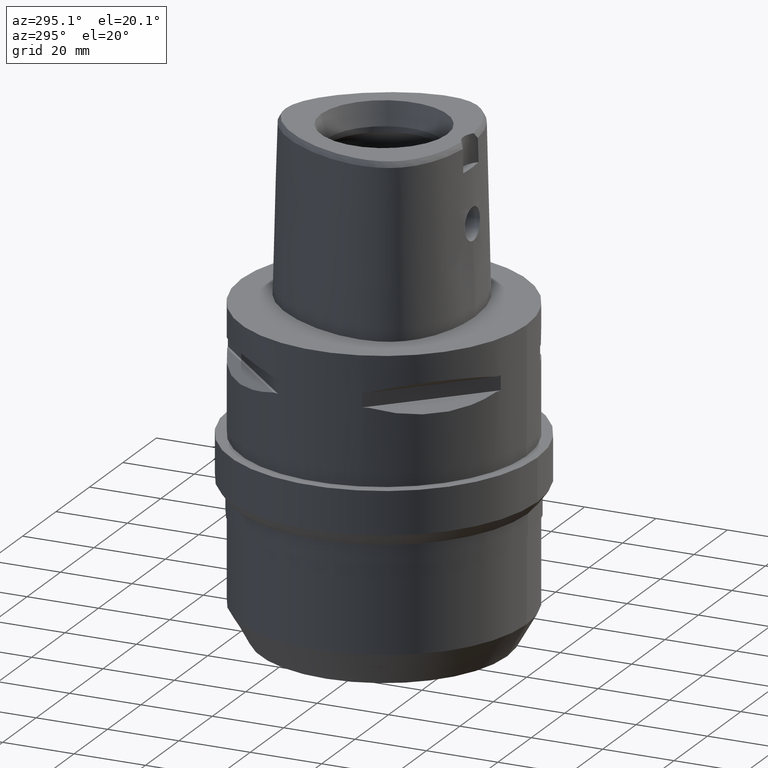
[diagram: clean part render]
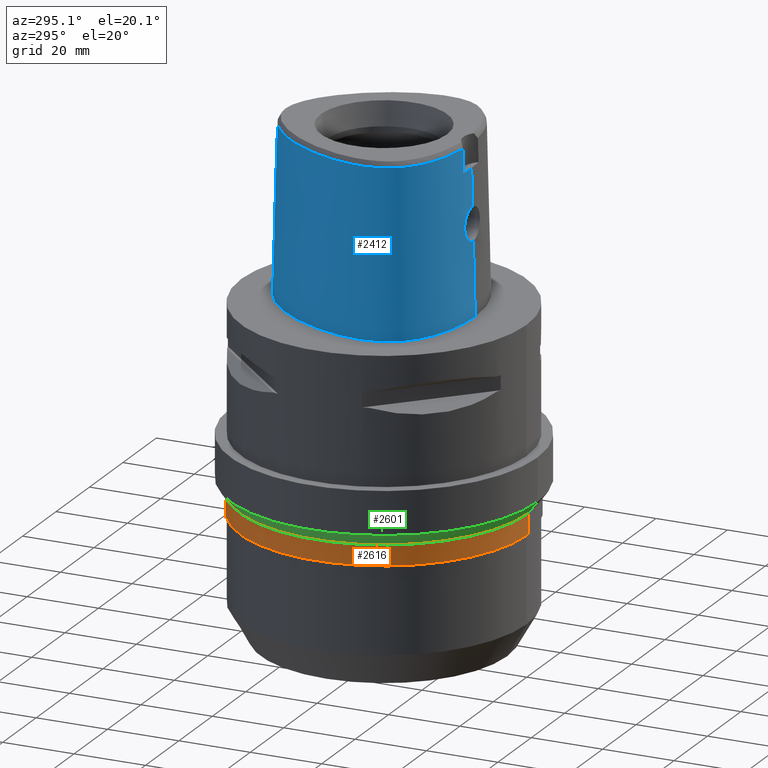
[diagram: same view with three faces highlighted in distinct colors, each labeled with its STEP entity id]
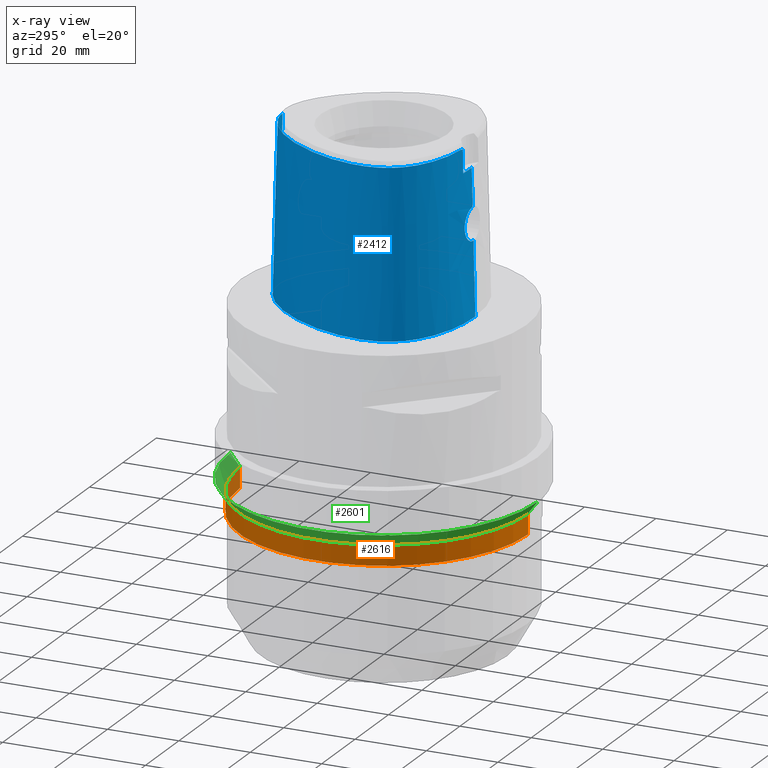
[diagram: x-ray of the same camera — body ghosted, the three highlighted faces saturated]
A machine part, auxiliary view with three faces highlighted in distinct colors.
The next image is the same camera in x-ray (body ghosted, the three faces saturated) — at least one of them is partly hidden behind the body in this view.
Their STEP definitions:

[orange] entity #2616 — the highlighted cylindrical surface (partial cylindrical patch) has radius 40.35 mm, axis along (0, 0, -1).
#594=CARTESIAN_POINT('',(0.E0,0.E0,-5.091666877729E1));
#595=DIRECTION('',(0.E0,0.E0,-1.E0));
#596=DIRECTION('',(0.E0,-1.E0,0.E0));
#597=AXIS2_PLACEMENT_3D('',#594,#595,#596);
#602=DIRECTION('',(0.E0,2.988031265328E-13,-1.E0));
#603=VECTOR('',#602,5.683331222709E0);
#604=CARTESIAN_POINT('',(0.E0,-4.035E1,-5.091666877729E1));
#605=LINE('',#604,#603);
#609=DIRECTION('',(0.E0,-2.988031265328E-13,-1.E0));
#610=VECTOR('',#609,5.683331222709E0);
#611=CARTESIAN_POINT('',(0.E0,4.035E1,-5.091666877729E1));
#612=LINE('',#611,#610);
#624=CARTESIAN_POINT('',(0.E0,0.E0,-5.66E1));
#625=DIRECTION('',(0.E0,0.E0,1.E0));
#626=DIRECTION('',(0.E0,1.E0,0.E0));
#627=AXIS2_PLACEMENT_3D('',#624,#625,#626);
#1600=CARTESIAN_POINT('',(0.E0,4.035E1,-5.091666877729E1));
#1601=VERTEX_POINT('',#1600);
#1602=CARTESIAN_POINT('',(0.E0,-4.035E1,-5.091666877729E1));
#1603=VERTEX_POINT('',#1602);
#1604=CARTESIAN_POINT('',(0.E0,4.035E1,-5.66E1));
#1605=VERTEX_POINT('',#1604);
#1606=CARTESIAN_POINT('',(0.E0,-4.035E1,-5.66E1));
#1607=VERTEX_POINT('',#1606);
#2602=CARTESIAN_POINT('',(0.E0,0.E0,4.62E0));
#2603=DIRECTION('',(0.E0,0.E0,-1.E0));
#2604=DIRECTION('',(0.E0,-1.E0,0.E0));
#2605=AXIS2_PLACEMENT_3D('',#2602,#2603,#2604);
#2606=CYLINDRICAL_SURFACE('',#2605,4.035E1);
#2608=ORIENTED_EDGE('',*,*,#2607,.F.);
#2609=ORIENTED_EDGE('',*,*,#2597,.F.);
#2611=ORIENTED_EDGE('',*,*,#2610,.T.);
#2613=ORIENTED_EDGE('',*,*,#2612,.F.);
#2614=EDGE_LOOP('',(#2608,#2609,#2611,#2613));
#2615=FACE_OUTER_BOUND('',#2614,.F.);
#598=CIRCLE('',#597,4.035E1);
#628=CIRCLE('',#627,4.035E1);
#2597=EDGE_CURVE('',#1603,#1601,#598,.T.);
#2607=EDGE_CURVE('',#1601,#1605,#612,.T.);
#2610=EDGE_CURVE('',#1603,#1607,#605,.T.);
#2612=EDGE_CURVE('',#1605,#1607,#628,.T.);
#2616=ADVANCED_FACE('',(#2615),#2606,.T.);

[blue] entity #2412 — the highlighted face is a freeform B-spline surface patch.
#197=CARTESIAN_POINT('',(-4.472216406693E0,-2.420008985674E1,4.652070903171E1));
#198=CARTESIAN_POINT('',(-5.535696090780E0,-2.409828737959E1,4.652067796942E1));
#199=CARTESIAN_POINT('',(-7.537492047378E0,-2.383054342748E1,4.652073780313E1));
#200=CARTESIAN_POINT('',(-1.009707893714E1,-2.331301964075E1,4.652070623966E1));
#201=CARTESIAN_POINT('',(-1.234026739645E1,-2.271045901302E1,4.652071932215E1));
#202=CARTESIAN_POINT('',(-1.435720702003E1,-2.202884162870E1,4.652071942163E1));
#203=CARTESIAN_POINT('',(-1.620109083545E1,-2.126639615954E1,4.652071666872E1));
#204=CARTESIAN_POINT('',(-1.789203321677E1,-2.042344793334E1,4.652071968984E1));
#205=CARTESIAN_POINT('',(-1.946547946128E1,-1.948257113983E1,4.652071724556E1));
#206=CARTESIAN_POINT('',(-2.091327144915E1,-1.843690128563E1,4.652071800333E1));
#207=CARTESIAN_POINT('',(-2.215514148304E1,-1.734782509168E1,4.652071777248E1));
#208=CARTESIAN_POINT('',(-2.319440521491E1,-1.624070531706E1,4.652072116018E1));
#209=CARTESIAN_POINT('',(-2.405233087688E1,-1.512284511738E1,4.652072282655E1));
#210=CARTESIAN_POINT('',(-2.475842404930E1,-1.398158538396E1,4.652071983229E1));
#211=CARTESIAN_POINT('',(-2.535341998813E1,-1.275625237356E1,4.652071175064E1));
#212=CARTESIAN_POINT('',(-2.585426339347E1,-1.139178155984E1,4.652072128293E1));
#213=CARTESIAN_POINT('',(-2.624626984412E1,-9.881841657330E0,4.652071785722E1));
#214=CARTESIAN_POINT('',(-2.651728077096E1,-8.174722834406E0,4.652072276603E1));
#215=CARTESIAN_POINT('',(-2.663450176932E1,-6.366223919380E0,4.652071351701E1));
#216=CARTESIAN_POINT('',(-2.660311770191E1,-4.520569375661E0,4.652072651250E1));
#217=CARTESIAN_POINT('',(-2.642892789065E1,-2.600901610572E0,4.652071590850E1));
#218=CARTESIAN_POINT('',(-2.610575130194E1,-5.851050941881E-1,
4.652071510782E1));
#219=CARTESIAN_POINT('',(-2.561779005425E1,1.560335947821E0,4.652072159103E1));
#220=CARTESIAN_POINT('',(-2.492873254188E1,3.895950727393E0,4.652070170358E1));
#221=CARTESIAN_POINT('',(-2.397785720825E1,6.494505747404E0,4.652072642433E1));
#222=CARTESIAN_POINT('',(-2.266788588541E1,9.435046772976E0,4.652069379531E1));
#223=CARTESIAN_POINT('',(-2.098616279133E1,1.256215451377E1,4.652072580218E1));
#224=CARTESIAN_POINT('',(-1.909271964583E1,1.551518943518E1,4.652068228930E1));
#225=CARTESIAN_POINT('',(-1.722915730816E1,1.800204295943E1,4.652072754715E1));
#226=CARTESIAN_POINT('',(-1.546270675943E1,2.005609305260E1,4.652070864834E1));
#227=CARTESIAN_POINT('',(-1.379537457490E1,2.175940482803E1,4.652072123371E1));
#228=CARTESIAN_POINT('',(-1.221132965694E1,2.318695541186E1,4.652072843725E1));
#229=CARTESIAN_POINT('',(-1.063153800587E1,2.443569604426E1,4.652071379716E1));
#230=CARTESIAN_POINT('',(-9.046806200712E0,2.551771001280E1,4.652072507957E1));
#231=CARTESIAN_POINT('',(-7.444512309172E0,2.644192410092E1,4.652071440757E1));
#232=CARTESIAN_POINT('',(-5.831403669631E0,2.719974727431E1,4.652072017212E1));
#233=CARTESIAN_POINT('',(-4.247522765596E0,2.777151884815E1,4.652071719450E1));
#234=CARTESIAN_POINT('',(-2.757388373659E0,2.815150949995E1,4.652072099701E1));
#235=CARTESIAN_POINT('',(-1.341194252993E0,2.836680419075E1,4.652067367601E1));
#236=CARTESIAN_POINT('',(-4.475109843232E-1,2.841206021535E1,4.652071719450E1));
#237=CARTESIAN_POINT('',(-1.223003593101E-11,2.841206021535E1,
4.652071719451E1));
#249=CARTESIAN_POINT('',(-4.472216406693E0,-2.420008985674E1,4.652070903171E1));
#250=CARTESIAN_POINT('',(-4.487210721186E0,-2.421685468864E1,4.579601479726E1));
#251=CARTESIAN_POINT('',(-4.516393871198E0,-2.424985511122E1,4.434671166025E1));
#252=CARTESIAN_POINT('',(-4.559960929945E0,-2.430022581201E1,4.217314625867E1));
#253=CARTESIAN_POINT('',(-4.588866880071E0,-2.433440429495E1,4.072435065553E1));
#254=CARTESIAN_POINT('',(-4.602926399294E0,-2.435121850033E1,4.E1));
#259=DIRECTION('',(1.388127436484E-9,-2.499239851702E-2,-9.996876412242E-1));
#260=VECTOR('',#259,1.045326522127E1);
#261=CARTESIAN_POINT('',(-1.451045074373E-8,-2.457504746727E1,
4.000000005214E1));
#262=LINE('',#261,#260);
#266=CARTESIAN_POINT('',(1.351075727146E-14,-2.483629963748E1,2.955E1));
#267=CARTESIAN_POINT('',(-3.966835984646E-1,-2.483629963748E1,2.955E1));
#268=CARTESIAN_POINT('',(-1.190418809773E0,-2.482887723659E1,2.944561742728E1));
#269=CARTESIAN_POINT('',(-2.300741017991E0,-2.479906243005E1,2.898605904871E1));
#270=CARTESIAN_POINT('',(-3.255789090205E0,-2.476057038817E1,2.825311794410E1));
#271=CARTESIAN_POINT('',(-3.987636326582E0,-2.472742176594E1,2.729796279280E1));
#272=CARTESIAN_POINT('',(-4.446358689829E0,-2.471345406062E1,2.618734946089E1));
#273=CARTESIAN_POINT('',(-4.602009607481E0,-2.472805014992E1,2.499856857259E1));
#274=CARTESIAN_POINT('',(-4.445601745922E0,-2.477322141726E1,2.381050642308E1));
#275=CARTESIAN_POINT('',(-3.987821795884E0,-2.484269847339E1,2.270284549258E1));
#276=CARTESIAN_POINT('',(-3.257169514981E0,-2.492348668177E1,2.174816226309E1));
#277=CARTESIAN_POINT('',(-2.300561363557E0,-2.499862191626E1,2.101354524447E1));
#278=CARTESIAN_POINT('',(-1.188130274278E0,-2.505127109848E1,2.055374615128E1));
#279=CARTESIAN_POINT('',(-3.956083647812E-1,-2.506378435149E1,2.045E1));
#280=CARTESIAN_POINT('',(-2.119246273958E-12,-2.506378435149E1,2.045E1));
#285=DIRECTION('',(-7.297938437820E-13,-2.499051295404E-2,-9.996876883619E-1));
#286=VECTOR('',#285,2.045638876829E1);
#287=CARTESIAN_POINT('',(-2.119246273958E-12,-2.506378435149E1,2.045E1));
#288=LINE('',#287,#286);
#352=CARTESIAN_POINT('',(4.094835185930E-11,2.957499999999E1,
1.055081947735E-13));
#353=CARTESIAN_POINT('',(-4.664564684384E-1,2.957499999999E1,
1.055081947735E-13));
#354=CARTESIAN_POINT('',(-1.418271028566E0,2.952848507996E1,
-4.896652360467E-14));
#355=CARTESIAN_POINT('',(-2.896217051050E0,2.930995325337E1,
1.312054045603E-14));
#356=CARTESIAN_POINT('',(-4.443884931567E0,2.892708811583E1,0.E0));
#357=CARTESIAN_POINT('',(-6.069813882001E0,2.835898482873E1,0.E0));
#358=CARTESIAN_POINT('',(-7.780373194796E0,2.758111955665E1,0.E0));
#359=CARTESIAN_POINT('',(-9.585481608237E0,2.656078305260E1,0.E0));
#360=CARTESIAN_POINT('',(-1.148361208187E1,2.526433347887E1,0.E0));
#361=CARTESIAN_POINT('',(-1.346633178516E1,2.365774650746E1,0.E0));
#362=CARTESIAN_POINT('',(-1.551326053238E1,2.171184069412E1,0.E0));
#363=CARTESIAN_POINT('',(-1.758199557510E1,1.941857400264E1,0.E0));
#364=CARTESIAN_POINT('',(-1.961693493878E1,1.679246973417E1,0.E0));
#365=CARTESIAN_POINT('',(-2.154357946018E1,1.388796551507E1,0.E0));
#366=CARTESIAN_POINT('',(-2.327631850598E1,1.081304331557E1,0.E0));
#367=CARTESIAN_POINT('',(-2.474800267217E1,7.689226874884E0,0.E0));
#368=CARTESIAN_POINT('',(-2.591507505114E1,4.647666988424E0,0.E0));
#369=CARTESIAN_POINT('',(-2.678019667027E1,1.761498275329E0,0.E0));
#370=CARTESIAN_POINT('',(-2.736252648146E1,-9.199920726734E-1,0.E0));
#371=CARTESIAN_POINT('',(-2.769345335620E1,-3.374240948671E0,0.E0));
#372=CARTESIAN_POINT('',(-2.780796994262E1,-5.603010637275E0,0.E0));
#373=CARTESIAN_POINT('',(-2.773915802349E1,-7.615039053868E0,0.E0));
#374=CARTESIAN_POINT('',(-2.751385896507E1,-9.436890439889E0,0.E0));
#375=CARTESIAN_POINT('',(-2.715772832384E1,-1.107142889865E1,0.E0));
#376=CARTESIAN_POINT('',(-2.668453526956E1,-1.255805913812E1,0.E0));
#377=CARTESIAN_POINT('',(-2.610182852062E1,-1.391937325701E1,0.E0));
#378=CARTESIAN_POINT('',(-2.539957500954E1,-1.519188202084E1,0.E0));
#379=CARTESIAN_POINT('',(-2.455886506967E1,-1.640320524147E1,0.E0));
#380=CARTESIAN_POINT('',(-2.356927570199E1,-1.756804304800E1,0.E0));
#381=CARTESIAN_POINT('',(-2.239536366538E1,-1.870975851906E1,0.E0));
#382=CARTESIAN_POINT('',(-2.101862773116E1,-1.982083592174E1,0.E0));
#383=CARTESIAN_POINT('',(-1.940143759145E1,-2.090242833450E1,0.E0));
#384=CARTESIAN_POINT('',(-1.751815854250E1,-2.193790857256E1,0.E0));
#385=CARTESIAN_POINT('',(-1.533575286605E1,-2.290979051184E1,0.E0));
#386=CARTESIAN_POINT('',(-1.283637987130E1,-2.378832450704E1,0.E0));
#387=CARTESIAN_POINT('',(-1.001156390994E1,-2.453906053571E1,0.E0));
#388=CARTESIAN_POINT('',(-6.881039442222E0,-2.512047618744E1,
1.390749675837E-14));
#389=CARTESIAN_POINT('',(-3.517978097918E0,-2.548906313244E1,
-5.190348450835E-14));
#390=CARTESIAN_POINT('',(-1.190740944839E0,-2.5575E1,1.118364660139E-13));
#391=CARTESIAN_POINT('',(-1.704819286307E-11,-2.5575E1,1.118364660139E-13));
#1023=DIRECTION('',(1.142754943752E-12,2.499051293969E-2,-9.996876883622E-1));
#1024=VECTOR('',#1023,4.653525069487E1);
#1025=CARTESIAN_POINT('',(-1.223003593101E-11,2.841206021535E1,
4.652071719451E1));
#1026=LINE('',#1025,#1024);
#1040=CARTESIAN_POINT('',(-1.451045074373E-8,-2.457504746727E1,
4.000000005214E1));
#1041=CARTESIAN_POINT('',(-5.124223382063E-1,-2.457504746706E1,
4.000000005214E1));
#1042=CARTESIAN_POINT('',(-1.536621703185E0,-2.455890147822E1,
3.999999997567E1));
#1043=CARTESIAN_POINT('',(-3.071957833090E0,-2.448406989332E1,
4.000000000695E1));
#1044=CARTESIAN_POINT('',(-4.092927957720E0,-2.440134255033E1,4.E1));
#1045=CARTESIAN_POINT('',(-4.602926399294E0,-2.435121850033E1,4.E1));
#1521=CARTESIAN_POINT('',(-4.602965878456E0,-2.435127227233E1,4.E1));
#1522=VERTEX_POINT('',#1521);
#1523=VERTEX_POINT('',#249);
#1524=CARTESIAN_POINT('',(-1.223003593101E-11,2.841206021535E1,
4.652071719451E1));
#1525=VERTEX_POINT('',#1524);
#1526=VERTEX_POINT('',#352);
#1527=VERTEX_POINT('',#391);
#1528=VERTEX_POINT('',#1040);
#1529=CARTESIAN_POINT('',(1.351075727145E-14,-2.483629963748E1,2.955E1));
#1530=VERTEX_POINT('',#1529);
#1531=VERTEX_POINT('',#280);
#2287=CARTESIAN_POINT('',(9.115101686112E-1,2.956851176048E1,
-9.304144967421E-1));
#2288=CARTESIAN_POINT('',(8.850788438847E-1,2.916624660665E1,1.519677011345E1));
#2289=CARTESIAN_POINT('',(8.586475191582E-1,2.876398145282E1,3.132395472365E1));
#2290=CARTESIAN_POINT('',(8.322161944317E-1,2.836171629899E1,4.745113933385E1));
#2291=CARTESIAN_POINT('',(6.077626423974E-1,2.958843421417E1,
-9.304144967421E-1));
#2292=CARTESIAN_POINT('',(5.902542483668E-1,2.918556699599E1,1.519677011345E1));
#2293=CARTESIAN_POINT('',(5.727458543362E-1,2.878269977782E1,3.132395472365E1));
#2294=CARTESIAN_POINT('',(5.552374603056E-1,2.837983255964E1,4.745113933385E1));
#2295=CARTESIAN_POINT('',(-7.475778414574E-1,2.963225228778E1,
-9.304144967421E-1));
#2296=CARTESIAN_POINT('',(-7.257524940536E-1,2.922811258826E1,
1.519677011345E1));
#2297=CARTESIAN_POINT('',(-7.039271466497E-1,2.882397288874E1,
3.132395472365E1));
#2298=CARTESIAN_POINT('',(-6.821017992458E-1,2.841983318922E1,
4.745113933385E1));
#2299=CARTESIAN_POINT('',(-3.154109046613E0,2.936302093424E1,
-9.304144967421E-1));
#2300=CARTESIAN_POINT('',(-3.067023396852E0,2.896669974079E1,1.519677011345E1));
#2301=CARTESIAN_POINT('',(-2.979937747091E0,2.857037854734E1,3.132395472365E1));
#2302=CARTESIAN_POINT('',(-2.892852097330E0,2.817405735390E1,4.745113933385E1));
#2303=CARTESIAN_POINT('',(-6.271543170706E0,2.837237220568E1,
-9.304144967421E-1));
#2304=CARTESIAN_POINT('',(-6.114741921530E0,2.799897532805E1,1.519677011345E1));
#2305=CARTESIAN_POINT('',(-5.957940672353E0,2.762557845043E1,3.132395472365E1));
#2306=CARTESIAN_POINT('',(-5.801139423176E0,2.725218157280E1,4.745113933385E1));
#2307=CARTESIAN_POINT('',(-9.316733117528E0,2.681182150682E1,
-9.304144967421E-1));
#2308=CARTESIAN_POINT('',(-9.105791461680E0,2.646675913855E1,1.519677011345E1));
#2309=CARTESIAN_POINT('',(-8.894849805832E0,2.612169677027E1,3.132395472365E1));
#2310=CARTESIAN_POINT('',(-8.683908149984E0,2.577663440199E1,4.745113933385E1));
#2311=CARTESIAN_POINT('',(-1.323332856326E1,2.406149249942E1,
-9.304144967421E-1));
#2312=CARTESIAN_POINT('',(-1.296695409471E1,2.375598709287E1,1.519677011345E1));
#2313=CARTESIAN_POINT('',(-1.270057962616E1,2.345048168632E1,3.132395472365E1));
#2314=CARTESIAN_POINT('',(-1.243420515760E1,2.314497627977E1,4.745113933385E1));
#2315=CARTESIAN_POINT('',(-1.777103258667E1,1.953703864479E1,
-9.304144967421E-1));
#2316=CARTESIAN_POINT('',(-1.745811262062E1,1.927961880175E1,1.519677011345E1));
#2317=CARTESIAN_POINT('',(-1.714519265457E1,1.902219895872E1,3.132395472365E1));
#2318=CARTESIAN_POINT('',(-1.683227268852E1,1.876477911568E1,4.745113933385E1));
#2319=CARTESIAN_POINT('',(-2.235908247811E1,1.290902243076E1,
-9.304144967421E-1));
#2320=CARTESIAN_POINT('',(-2.200846692396E1,1.270659196427E1,1.519677011345E1));
#2321=CARTESIAN_POINT('',(-2.165785136981E1,1.250416149778E1,3.132395472365E1));
#2322=CARTESIAN_POINT('',(-2.130723581565E1,1.230173103128E1,4.745113933385E1));
#2323=CARTESIAN_POINT('',(-2.523075706229E1,6.836210430756E0,
-9.304144967421E-1));
#2324=CARTESIAN_POINT('',(-2.485610464695E1,6.683875464319E0,1.519677011345E1));
#2325=CARTESIAN_POINT('',(-2.448145223162E1,6.531540497882E0,3.132395472365E1));
#2326=CARTESIAN_POINT('',(-2.410679981629E1,6.379205531445E0,4.745113933385E1));
#2327=CARTESIAN_POINT('',(-2.679474625822E1,1.906447387461E0,
-9.304144967421E-1));
#2328=CARTESIAN_POINT('',(-2.640443225606E1,1.802817671474E0,1.519677011345E1));
#2329=CARTESIAN_POINT('',(-2.601411825390E1,1.699187955488E0,3.132395472365E1));
#2330=CARTESIAN_POINT('',(-2.562380425174E1,1.595558239502E0,4.745113933385E1));
#2331=CARTESIAN_POINT('',(-2.756041892290E1,-1.762105663687E0,
-9.304144967421E-1));
#2332=CARTESIAN_POINT('',(-2.716099298171E1,-1.823107493114E0,
1.519677011345E1));
#2333=CARTESIAN_POINT('',(-2.676156704052E1,-1.884109322542E0,
3.132395472365E1));
#2334=CARTESIAN_POINT('',(-2.636214109934E1,-1.945111151969E0,
4.745113933385E1));
#2335=CARTESIAN_POINT('',(-2.787808443150E1,-5.337383714056E0,
-9.304144967421E-1));
#2336=CARTESIAN_POINT('',(-2.747379250790E1,-5.347524337089E0,
1.519677011345E1));
#2337=CARTESIAN_POINT('',(-2.706950058431E1,-5.357664960122E0,
3.132395472365E1));
#2338=CARTESIAN_POINT('',(-2.666520866071E1,-5.367805583155E0,
4.745113933385E1));
#2339=CARTESIAN_POINT('',(-2.770696775952E1,-8.754869100897E0,
-9.304144967421E-1));
#2340=CARTESIAN_POINT('',(-2.730517726063E1,-8.703986977016E0,
1.519677011345E1));
#2341=CARTESIAN_POINT('',(-2.690338676174E1,-8.653104853136E0,
3.132395472365E1));
#2342=CARTESIAN_POINT('',(-2.650159626285E1,-8.602222729256E0,
4.745113933385E1));
#2343=CARTESIAN_POINT('',(-2.712297208029E1,-1.141745865554E1,
-9.304144967421E-1));
#2344=CARTESIAN_POINT('',(-2.673375369941E1,-1.130662581371E1,
1.519677011345E1));
#2345=CARTESIAN_POINT('',(-2.634453531853E1,-1.119579297188E1,
3.132395472365E1));
#2346=CARTESIAN_POINT('',(-2.595531693765E1,-1.108496013005E1,
4.745113933385E1));
#2347=CARTESIAN_POINT('',(-2.637046814586E1,-1.340391019839E1,
-9.304144967421E-1));
#2348=CARTESIAN_POINT('',(-2.600056140236E1,-1.324168030116E1,
1.519677011345E1));
#2349=CARTESIAN_POINT('',(-2.563065465885E1,-1.307945040392E1,
3.132395472365E1));
#2350=CARTESIAN_POINT('',(-2.526074791535E1,-1.291722050669E1,
4.745113933385E1));
#2351=CARTESIAN_POINT('',(-2.565830880207E1,-1.481383149385E1,
-9.304144967421E-1));
#2352=CARTESIAN_POINT('',(-2.530843714186E1,-1.461183299640E1,
1.519677011345E1));
#2353=CARTESIAN_POINT('',(-2.495856548165E1,-1.440983449896E1,
3.132395472365E1));
#2354=CARTESIAN_POINT('',(-2.460869382144E1,-1.420783600152E1,
4.745113933385E1));
#2355=CARTESIAN_POINT('',(-2.479336081489E1,-1.613554022482E1,
-9.304144967421E-1));
#2356=CARTESIAN_POINT('',(-2.446791222901E1,-1.589630653640E1,
1.519677011345E1));
#2357=CARTESIAN_POINT('',(-2.414246364312E1,-1.565707284799E1,
3.132395472365E1));
#2358=CARTESIAN_POINT('',(-2.381701505723E1,-1.541783915957E1,
4.745113933385E1));
#2359=CARTESIAN_POINT('',(-2.344929528191E1,-1.778045351983E1,
-9.304144967421E-1));
#2360=CARTESIAN_POINT('',(-2.315870204522E1,-1.749879693649E1,
1.519677011345E1));
#2361=CARTESIAN_POINT('',(-2.286810880854E1,-1.721714035314E1,
3.132395472365E1));
#2362=CARTESIAN_POINT('',(-2.257751557186E1,-1.693548376979E1,
4.745113933385E1));
#2363=CARTESIAN_POINT('',(-2.143542293278E1,-1.961750339172E1,
-9.304144967421E-1));
#2364=CARTESIAN_POINT('',(-2.119046238761E1,-1.929498366444E1,
1.519677011345E1));
#2365=CARTESIAN_POINT('',(-2.094550184244E1,-1.897246393716E1,
3.132395472365E1));
#2366=CARTESIAN_POINT('',(-2.070054129727E1,-1.864994420988E1,
4.745113933385E1));
#2367=CARTESIAN_POINT('',(-1.856135208420E1,-2.147443746734E1,
-9.304144967421E-1));
#2368=CARTESIAN_POINT('',(-1.836798846575E1,-2.111924011670E1,
1.519677011345E1));
#2369=CARTESIAN_POINT('',(-1.817462484729E1,-2.076404276606E1,
3.132395472365E1));
#2370=CARTESIAN_POINT('',(-1.798126122884E1,-2.040884541541E1,
4.745113933385E1));
#2371=CARTESIAN_POINT('',(-1.530623779618E1,-2.298697010234E1,
-9.304144967421E-1));
#2372=CARTESIAN_POINT('',(-1.515935281865E1,-2.261055603681E1,
1.519677011345E1));
#2373=CARTESIAN_POINT('',(-1.501246784111E1,-2.223414197127E1,
3.132395472365E1));
#2374=CARTESIAN_POINT('',(-1.486558286358E1,-2.185772790573E1,
4.745113933385E1));
#2375=CARTESIAN_POINT('',(-1.174634101497E1,-2.415815461142E1,
-9.304144967421E-1));
#2376=CARTESIAN_POINT('',(-1.164093423793E1,-2.376831843013E1,
1.519677011345E1));
#2377=CARTESIAN_POINT('',(-1.153552746088E1,-2.337848224884E1,
3.132395472365E1));
#2378=CARTESIAN_POINT('',(-1.143012068384E1,-2.298864606755E1,
4.745113933385E1));
#2379=CARTESIAN_POINT('',(-6.695047936573E0,-2.526858194670E1,
-9.304144967421E-1));
#2380=CARTESIAN_POINT('',(-6.639625075629E0,-2.486795320382E1,
1.519677011345E1));
#2381=CARTESIAN_POINT('',(-6.584202214685E0,-2.446732446093E1,
3.132395472365E1));
#2382=CARTESIAN_POINT('',(-6.528779353741E0,-2.406669571804E1,
4.745113933385E1));
#2383=CARTESIAN_POINT('',(-2.393548608073E0,-2.562160468887E1,
-9.304144967421E-1));
#2384=CARTESIAN_POINT('',(-2.373852717963E0,-2.521827344344E1,
1.519677011345E1));
#2385=CARTESIAN_POINT('',(-2.354156827852E0,-2.481494219802E1,
3.132395472365E1));
#2386=CARTESIAN_POINT('',(-2.334460937741E0,-2.441161095259E1,
4.745113933385E1));
#2387=CARTESIAN_POINT('',(5.689259951284E-1,-2.559577895960E1,
-9.304144967421E-1));
#2388=CARTESIAN_POINT('',(5.642418783078E-1,-2.519264541843E1,
1.519677011345E1));
#2389=CARTESIAN_POINT('',(5.595577614872E-1,-2.478951187726E1,
3.132395472365E1));
#2390=CARTESIAN_POINT('',(5.548736446665E-1,-2.438637833609E1,
4.745113933385E1));
#2391=CARTESIAN_POINT('',(8.532670504070E-1,-2.559082387580E1,
-9.304144967421E-1));
#2392=CARTESIAN_POINT('',(8.462420187111E-1,-2.518772735178E1,
1.519677011345E1));
#2393=CARTESIAN_POINT('',(8.392169870153E-1,-2.478463082776E1,
3.132395472365E1));
#2394=CARTESIAN_POINT('',(8.321919553195E-1,-2.438153430374E1,
4.745113933385E1));
#2395=B_SPLINE_SURFACE_WITH_KNOTS('',3,3,((#2287,#2288,#2289,#2290),(#2291,
#2292,#2293,#2294),(#2295,#2296,#2297,#2298),(#2299,#2300,#2301,#2302),(#2303,
#2304,#2305,#2306),(#2307,#2308,#2309,#2310),(#2311,#2312,#2313,#2314),(#2315,
#2316,#2317,#2318),(#2319,#2320,#2321,#2322),(#2323,#2324,#2325,#2326),(#2327,
#2328,#2329,#2330),(#2331,#2332,#2333,#2334),(#2335,#2336,#2337,#2338),(#2339,
#2340,#2341,#2342),(#2343,#2344,#2345,#2346),(#2347,#2348,#2349,#2350),(#2351,
#2352,#2353,#2354),(#2355,#2356,#2357,#2358),(#2359,#2360,#2361,#2362),(#2363,
#2364,#2365,#2366),(#2367,#2368,#2369,#2370),(#2371,#2372,#2373,#2374),(#2375,
#2376,#2377,#2378),(#2379,#2380,#2381,#2382),(#2383,#2384,#2385,#2386),(#2387,
#2388,#2389,#2390),(#2391,#2392,#2393,#2394)),.UNSPECIFIED.,.F.,.F.,.F.,(4,1,1,
1,1,1,1,1,1,1,1,1,1,1,1,1,1,1,1,1,1,1,1,1,4),(4,4),(-1.204223939042E-2,0.E0,
4.166666666718E-2,8.333333333380E-2,1.250000000004E-1,1.666666666671E-1,
2.500000000003E-1,3.333333333336E-1,4.166666666669E-1,4.583333333335E-1,
5.000000000001E-1,5.416666666668E-1,5.833333333334E-1,6.25E-1,6.458333333333E-1,
6.666666666667E-1,6.875E-1,7.083333333333E-1,7.499999999999E-1,
7.916666666666E-1,8.333333333332E-1,8.749999999998E-1,9.166666666665E-1,1.E0,
1.008851807893E0),(4.922670875096E-9,9.999997489438E-1),.UNSPECIFIED.);
#2397=ORIENTED_EDGE('',*,*,#2396,.F.);
#2399=ORIENTED_EDGE('',*,*,#2398,.F.);
#2400=ORIENTED_EDGE('',*,*,#2280,.F.);
#2401=ORIENTED_EDGE('',*,*,#1709,.T.);
#2403=ORIENTED_EDGE('',*,*,#2402,.F.);
#2405=ORIENTED_EDGE('',*,*,#2404,.T.);
#2407=ORIENTED_EDGE('',*,*,#2406,.T.);
#2409=ORIENTED_EDGE('',*,*,#2408,.T.);
#2410=EDGE_LOOP('',(#2397,#2399,#2400,#2401,#2403,#2405,#2407,#2409));
#2411=FACE_OUTER_BOUND('',#2410,.F.);
#238=B_SPLINE_CURVE_WITH_KNOTS('',3,(#197,#198,#199,#200,#201,#202,#203,#204,
#205,#206,#207,#208,#209,#210,#211,#212,#213,#214,#215,#216,#217,#218,#219,#220,
#221,#222,#223,#224,#225,#226,#227,#228,#229,#230,#231,#232,#233,#234,#235,#236,
#237),.UNSPECIFIED.,.F.,.F.,(4,1,1,1,1,1,1,1,1,1,1,1,1,1,1,1,1,1,1,1,1,1,1,1,1,
1,1,1,1,1,1,1,1,1,1,1,1,1,4),(0.E0,2.631578947368E-2,5.263157894737E-2,
7.894736842105E-2,1.052631578947E-1,1.315789473684E-1,1.578947368421E-1,
1.842105263158E-1,2.105263157895E-1,2.368421052632E-1,2.631578947368E-1,
2.894736842105E-1,3.157894736842E-1,3.421052631579E-1,3.684210526316E-1,
3.947368421053E-1,4.210526315789E-1,4.473684210526E-1,4.736842105263E-1,5.E-1,
5.263157894737E-1,5.526315789474E-1,5.789473684211E-1,6.052631578947E-1,
6.315789473684E-1,6.578947368421E-1,6.842105263158E-1,7.105263157895E-1,
7.368421052632E-1,7.631578947368E-1,7.894736842105E-1,8.157894736842E-1,
8.421052631579E-1,8.684210526316E-1,8.947368421053E-1,9.210526315789E-1,
9.473684210526E-1,9.736842105263E-1,1.E0),.UNSPECIFIED.);
#255=B_SPLINE_CURVE_WITH_KNOTS('',3,(#249,#250,#251,#252,#253,#254),
.UNSPECIFIED.,.F.,.F.,(4,1,1,4),(0.E0,3.333333333333E-1,6.666666666667E-1,1.E0),
.UNSPECIFIED.);
#281=B_SPLINE_CURVE_WITH_KNOTS('',3,(#266,#267,#268,#269,#270,#271,#272,#273,
#274,#275,#276,#277,#278,#279,#280),.UNSPECIFIED.,.F.,.F.,(4,1,1,1,1,1,1,1,1,1,
1,1,4),(0.E0,8.333333333333E-2,1.666666666667E-1,2.5E-1,3.333333333333E-1,
4.166666666667E-1,5.E-1,5.833333333333E-1,6.666666666667E-1,7.5E-1,
8.333333333333E-1,9.166666666667E-1,1.E0),.UNSPECIFIED.);
#392=B_SPLINE_CURVE_WITH_KNOTS('',3,(#352,#353,#354,#355,#356,#357,#358,#359,
#360,#361,#362,#363,#364,#365,#366,#367,#368,#369,#370,#371,#372,#373,#374,#375,
#376,#377,#378,#379,#380,#381,#382,#383,#384,#385,#386,#387,#388,#389,#390,
#391),.UNSPECIFIED.,.F.,.F.,(4,1,1,1,1,1,1,1,1,1,1,1,1,1,1,1,1,1,1,1,1,1,1,1,1,
1,1,1,1,1,1,1,1,1,1,1,1,4),(0.E0,2.702702702703E-2,5.405405405405E-2,
8.108108108108E-2,1.081081081081E-1,1.351351351351E-1,1.621621621622E-1,
1.891891891892E-1,2.162162162162E-1,2.432432432432E-1,2.702702702703E-1,
2.972972972973E-1,3.243243243243E-1,3.513513513514E-1,3.783783783784E-1,
4.054054054054E-1,4.324324324324E-1,4.594594594595E-1,4.864864864865E-1,
5.135135135135E-1,5.405405405405E-1,5.675675675676E-1,5.945945945946E-1,
6.216216216216E-1,6.486486486486E-1,6.756756756757E-1,7.027027027027E-1,
7.297297297297E-1,7.567567567568E-1,7.837837837838E-1,8.108108108108E-1,
8.378378378378E-1,8.648648648649E-1,8.918918918919E-1,9.189189189189E-1,
9.459459459459E-1,9.729729729730E-1,1.E0),.UNSPECIFIED.);
#1046=B_SPLINE_CURVE_WITH_KNOTS('',3,(#1040,#1041,#1042,#1043,#1044,#1045),
.UNSPECIFIED.,.F.,.F.,(4,1,1,4),(0.E0,3.333333333333E-1,6.666666666667E-1,1.E0),
.UNSPECIFIED.);
#1709=EDGE_CURVE('',#1523,#1522,#255,.T.);
#2280=EDGE_CURVE('',#1523,#1525,#238,.T.);
#2396=EDGE_CURVE('',#1526,#1527,#392,.T.);
#2398=EDGE_CURVE('',#1525,#1526,#1026,.T.);
#2402=EDGE_CURVE('',#1528,#1522,#1046,.T.);
#2404=EDGE_CURVE('',#1528,#1530,#262,.T.);
#2406=EDGE_CURVE('',#1530,#1531,#281,.T.);
#2408=EDGE_CURVE('',#1531,#1527,#288,.T.);
#2412=ADVANCED_FACE('',(#2411),#2395,.T.);

[green] entity #2601 — the highlighted conical surface has half-angle 37 deg.
#556=DIRECTION('',(0.E0,-6.018150231523E-1,-7.986355100471E-1));
#557=VECTOR('',#556,4.403346373971E0);
#558=CARTESIAN_POINT('',(0.E0,4.3E1,-4.74E1));
#559=LINE('',#558,#557);
#579=CARTESIAN_POINT('',(0.E0,0.E0,-4.74E1));
#580=DIRECTION('',(0.E0,0.E0,1.E0));
#581=DIRECTION('',(0.E0,1.E0,0.E0));
#582=AXIS2_PLACEMENT_3D('',#579,#580,#581);
#587=DIRECTION('',(0.E0,6.018150231523E-1,-7.986355100471E-1));
#588=VECTOR('',#587,4.403346373971E0);
#589=CARTESIAN_POINT('',(0.E0,-4.3E1,-4.74E1));
#590=LINE('',#589,#588);
#594=CARTESIAN_POINT('',(0.E0,0.E0,-5.091666877729E1));
#595=DIRECTION('',(0.E0,0.E0,-1.E0));
#596=DIRECTION('',(0.E0,-1.E0,0.E0));
#597=AXIS2_PLACEMENT_3D('',#594,#595,#596);
#1596=CARTESIAN_POINT('',(0.E0,4.3E1,-4.74E1));
#1597=VERTEX_POINT('',#1596);
#1598=CARTESIAN_POINT('',(0.E0,-4.3E1,-4.74E1));
#1599=VERTEX_POINT('',#1598);
#1600=CARTESIAN_POINT('',(0.E0,4.035E1,-5.091666877729E1));
#1601=VERTEX_POINT('',#1600);
#1602=CARTESIAN_POINT('',(0.E0,-4.035E1,-5.091666877729E1));
#1603=VERTEX_POINT('',#1602);
#2589=CARTESIAN_POINT('',(0.E0,0.E0,-4.915833438865E1));
#2590=DIRECTION('',(0.E0,0.E0,1.E0));
#2591=DIRECTION('',(0.E0,1.E0,0.E0));
#2592=AXIS2_PLACEMENT_3D('',#2589,#2590,#2591);
#2593=CONICAL_SURFACE('',#2592,4.1675E1,3.7E1);
#2594=ORIENTED_EDGE('',*,*,#2579,.F.);
#2595=ORIENTED_EDGE('',*,*,#2556,.T.);
#2596=ORIENTED_EDGE('',*,*,#2583,.T.);
#2598=ORIENTED_EDGE('',*,*,#2597,.T.);
#2599=EDGE_LOOP('',(#2594,#2595,#2596,#2598));
#2600=FACE_OUTER_BOUND('',#2599,.F.);
#583=CIRCLE('',#582,4.3E1);
#598=CIRCLE('',#597,4.035E1);
#2556=EDGE_CURVE('',#1597,#1599,#583,.T.);
#2579=EDGE_CURVE('',#1597,#1601,#559,.T.);
#2583=EDGE_CURVE('',#1599,#1603,#590,.T.);
#2597=EDGE_CURVE('',#1603,#1601,#598,.T.);
#2601=ADVANCED_FACE('',(#2600),#2593,.T.);